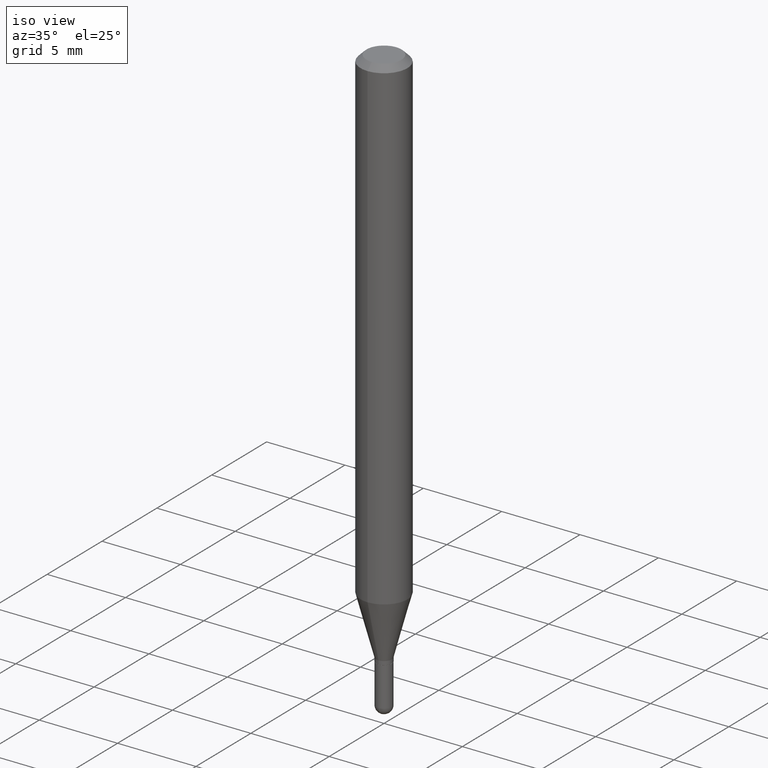
[diagram: clean part render]
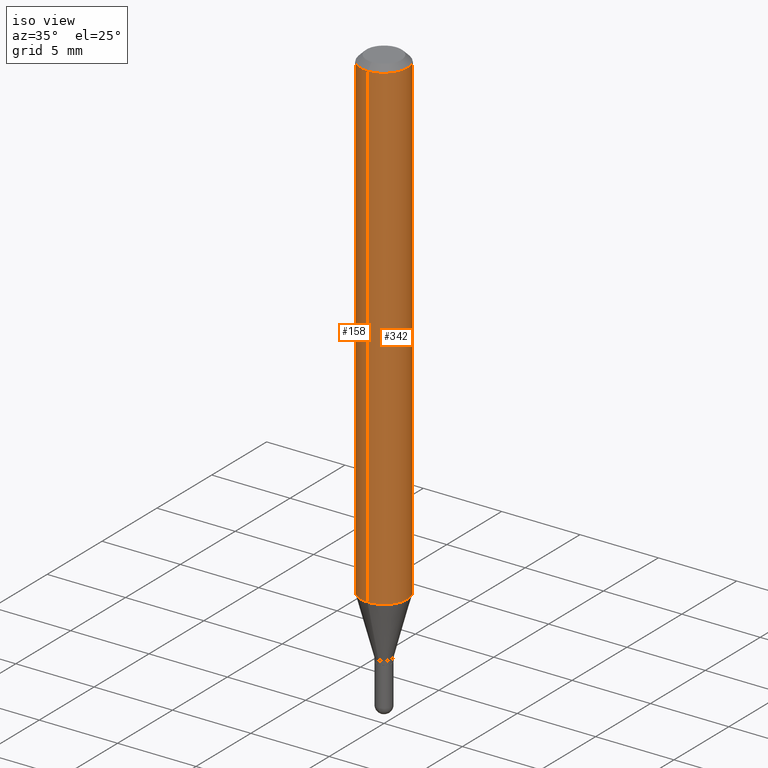
[diagram: same view with one multi-face feature highlighted, each face labeled with its STEP entity id]
A machine part, iso view. The highlighted faces form ONE feature: a constant-radius fillet chain: 2 tangent blend faces with common blend radius 1.4999 mm. The faces share edges in the B-rep.
Their STEP definitions:
[1] entity #158 (Cylinder):
#41 = AXIS2_PLACEMENT_3D ( 'NONE', #121, #193, #351 ) ;
#61 = ORIENTED_EDGE ( 'NONE', *, *, #447, .T. ) ;
#70 = CARTESIAN_POINT ( 'NONE',  ( 4.195754854663691246E-16, 0.05904999999999994975, -0.01500000000000055109 ) ) ;
#74 = CYLINDRICAL_SURFACE ( 'NONE', #98, 0.05904999999999999832 ) ;
#78 = LINE ( 'NONE', #320, #326 ) ;
#90 = DIRECTION ( 'NONE',  ( -2.446456800980005402E-29, 3.490066474063722068E-15, 1.000000000000000000 ) ) ;
#98 = AXIS2_PLACEMENT_3D ( 'NONE', #315, #460, #167 ) ;
#106 = CARTESIAN_POINT ( 'NONE',  ( -4.123439461173736383E-16, -0.05905000000000005383, -0.01500000000000013649 ) ) ;
#118 = FACE_OUTER_BOUND ( 'NONE', #353, .T. ) ;
#121 = CARTESIAN_POINT ( 'NONE',  ( 2.987720201931407293E-29, -4.262222045558578692E-15, -1.221243800722163320 ) ) ;
#125 = CARTESIAN_POINT ( 'NONE',  ( -4.123439461173442039E-16, -0.05905000000000427962, -1.221243800722163320 ) ) ;
#141 = ORIENTED_EDGE ( 'NONE', *, *, #488, .T. ) ;
#142 = AXIS2_PLACEMENT_3D ( 'NONE', #237, #90, #248 ) ;
#147 = VERTEX_POINT ( 'NONE', #70 ) ;
#158 = ADVANCED_FACE ( 'NONE', ( #118 ), #74, .T. ) ;
#167 = DIRECTION ( 'NONE',  ( -6.982962677686265922E-15, -1.000000000000000000, 3.490066474063722068E-15 ) ) ;
#183 = EDGE_CURVE ( 'NONE', #147, #493, #480, .T. ) ;
#191 = VECTOR ( 'NONE', #396, 39.37007874015748143 ) ;
#193 = DIRECTION ( 'NONE',  ( -2.446456800980005402E-29, 3.490066474063722068E-15, 1.000000000000000000 ) ) ;
#215 = CIRCLE ( 'NONE', #41, 0.05904999999999999832 ) ;
#224 = EDGE_CURVE ( 'NONE', #250, #147, #78, .T. ) ;
#237 = CARTESIAN_POINT ( 'NONE',  ( 3.669685201470092461E-31, -5.235099711095702540E-17, -0.01500000000000034292 ) ) ;
#248 = DIRECTION ( 'NONE',  ( -6.982962677686265922E-15, -1.000000000000000000, 3.505890868245046092E-15 ) ) ;
#250 = VERTEX_POINT ( 'NONE', #364 ) ;
#260 = VERTEX_POINT ( 'NONE', #125 ) ;
#315 = CARTESIAN_POINT ( 'NONE',  ( 0.000000000000000000, 0.000000000000000000, 0.000000000000000000 ) ) ;
#320 = CARTESIAN_POINT ( 'NONE',  ( 4.195754854663390985E-16, 0.05904999999999999832, -2.060884252934627892E-16 ) ) ;
#326 = VECTOR ( 'NONE', #372, 39.37007874015748143 ) ;
#351 = DIRECTION ( 'NONE',  ( -6.982962677686265922E-15, -1.000000000000000000, 4.626330217890369336E-15 ) ) ;
#353 = EDGE_LOOP ( 'NONE', ( #498, #61, #141, #452 ) ) ;
#364 = CARTESIAN_POINT ( 'NONE',  ( 4.195754854663688780E-16, 0.05904999999999572396, -1.221243800722163542 ) ) ;
#372 = DIRECTION ( 'NONE',  ( -2.446456800980005682E-29, 3.490066474063722068E-15, 1.000000000000000000 ) ) ;
#382 = CARTESIAN_POINT ( 'NONE',  ( -4.123439461173739834E-16, -0.05904999999999999832, 2.060884252934627892E-16 ) ) ;
#385 = LINE ( 'NONE', #382, #191 ) ;
#396 = DIRECTION ( 'NONE',  ( -2.446456800980005682E-29, 3.490066474063722068E-15, 1.000000000000000000 ) ) ;
#447 = EDGE_CURVE ( 'NONE', #250, #260, #215, .T. ) ;
#452 = ORIENTED_EDGE ( 'NONE', *, *, #183, .F. ) ;
#460 = DIRECTION ( 'NONE',  ( -2.446456800980005402E-29, 3.490066474063722068E-15, 1.000000000000000000 ) ) ;
#480 = CIRCLE ( 'NONE', #142, 0.05904999999999999832 ) ;
#488 = EDGE_CURVE ( 'NONE', #260, #493, #385, .T. ) ;
#493 = VERTEX_POINT ( 'NONE', #106 ) ;
#498 = ORIENTED_EDGE ( 'NONE', *, *, #224, .F. ) ;
[2] entity #342 (Cylinder):
#50 = DIRECTION ( 'NONE',  ( -6.982962677686265922E-15, -1.000000000000000000, 3.490066474063722068E-15 ) ) ;
#54 = AXIS2_PLACEMENT_3D ( 'NONE', #273, #269, #113 ) ;
#60 = CYLINDRICAL_SURFACE ( 'NONE', #182, 0.05904999999999999832 ) ;
#70 = CARTESIAN_POINT ( 'NONE',  ( 4.195754854663691246E-16, 0.05904999999999994975, -0.01500000000000055109 ) ) ;
#78 = LINE ( 'NONE', #320, #326 ) ;
#97 = ORIENTED_EDGE ( 'NONE', *, *, #488, .F. ) ;
#106 = CARTESIAN_POINT ( 'NONE',  ( -4.123439461173736383E-16, -0.05905000000000005383, -0.01500000000000013649 ) ) ;
#113 = DIRECTION ( 'NONE',  ( -6.982962677686265922E-15, -1.000000000000000000, 4.626330217890369336E-15 ) ) ;
#125 = CARTESIAN_POINT ( 'NONE',  ( -4.123439461173442039E-16, -0.05905000000000427962, -1.221243800722163320 ) ) ;
#144 = EDGE_CURVE ( 'NONE', #260, #250, #369, .T. ) ;
#147 = VERTEX_POINT ( 'NONE', #70 ) ;
#174 = ORIENTED_EDGE ( 'NONE', *, *, #144, .T. ) ;
#177 = FACE_OUTER_BOUND ( 'NONE', #216, .T. ) ;
#182 = AXIS2_PLACEMENT_3D ( 'NONE', #338, #410, #50 ) ;
#191 = VECTOR ( 'NONE', #396, 39.37007874015748143 ) ;
#208 = CIRCLE ( 'NONE', #308, 0.05904999999999999832 ) ;
#216 = EDGE_LOOP ( 'NONE', ( #174, #459, #279, #97 ) ) ;
#224 = EDGE_CURVE ( 'NONE', #250, #147, #78, .T. ) ;
#228 = DIRECTION ( 'NONE',  ( -2.446456800980005402E-29, 3.490066474063722068E-15, 1.000000000000000000 ) ) ;
#250 = VERTEX_POINT ( 'NONE', #364 ) ;
#252 = CARTESIAN_POINT ( 'NONE',  ( 3.669685201470092461E-31, -5.235099711095702540E-17, -0.01500000000000034292 ) ) ;
#260 = VERTEX_POINT ( 'NONE', #125 ) ;
#264 = DIRECTION ( 'NONE',  ( -6.982962677686265922E-15, -1.000000000000000000, 3.505890868245046092E-15 ) ) ;
#269 = DIRECTION ( 'NONE',  ( -2.446456800980005402E-29, 3.490066474063722068E-15, 1.000000000000000000 ) ) ;
#273 = CARTESIAN_POINT ( 'NONE',  ( 2.987720201931407293E-29, -4.262222045558578692E-15, -1.221243800722163320 ) ) ;
#279 = ORIENTED_EDGE ( 'NONE', *, *, #417, .F. ) ;
#308 = AXIS2_PLACEMENT_3D ( 'NONE', #252, #228, #264 ) ;
#320 = CARTESIAN_POINT ( 'NONE',  ( 4.195754854663390985E-16, 0.05904999999999999832, -2.060884252934627892E-16 ) ) ;
#326 = VECTOR ( 'NONE', #372, 39.37007874015748143 ) ;
#338 = CARTESIAN_POINT ( 'NONE',  ( 0.000000000000000000, 0.000000000000000000, 0.000000000000000000 ) ) ;
#342 = ADVANCED_FACE ( 'NONE', ( #177 ), #60, .T. ) ;
#364 = CARTESIAN_POINT ( 'NONE',  ( 4.195754854663688780E-16, 0.05904999999999572396, -1.221243800722163542 ) ) ;
#369 = CIRCLE ( 'NONE', #54, 0.05904999999999999832 ) ;
#372 = DIRECTION ( 'NONE',  ( -2.446456800980005682E-29, 3.490066474063722068E-15, 1.000000000000000000 ) ) ;
#382 = CARTESIAN_POINT ( 'NONE',  ( -4.123439461173739834E-16, -0.05904999999999999832, 2.060884252934627892E-16 ) ) ;
#385 = LINE ( 'NONE', #382, #191 ) ;
#396 = DIRECTION ( 'NONE',  ( -2.446456800980005682E-29, 3.490066474063722068E-15, 1.000000000000000000 ) ) ;
#410 = DIRECTION ( 'NONE',  ( -2.446456800980005402E-29, 3.490066474063722068E-15, 1.000000000000000000 ) ) ;
#417 = EDGE_CURVE ( 'NONE', #493, #147, #208, .T. ) ;
#459 = ORIENTED_EDGE ( 'NONE', *, *, #224, .T. ) ;
#488 = EDGE_CURVE ( 'NONE', #260, #493, #385, .T. ) ;
#493 = VERTEX_POINT ( 'NONE', #106 ) ;